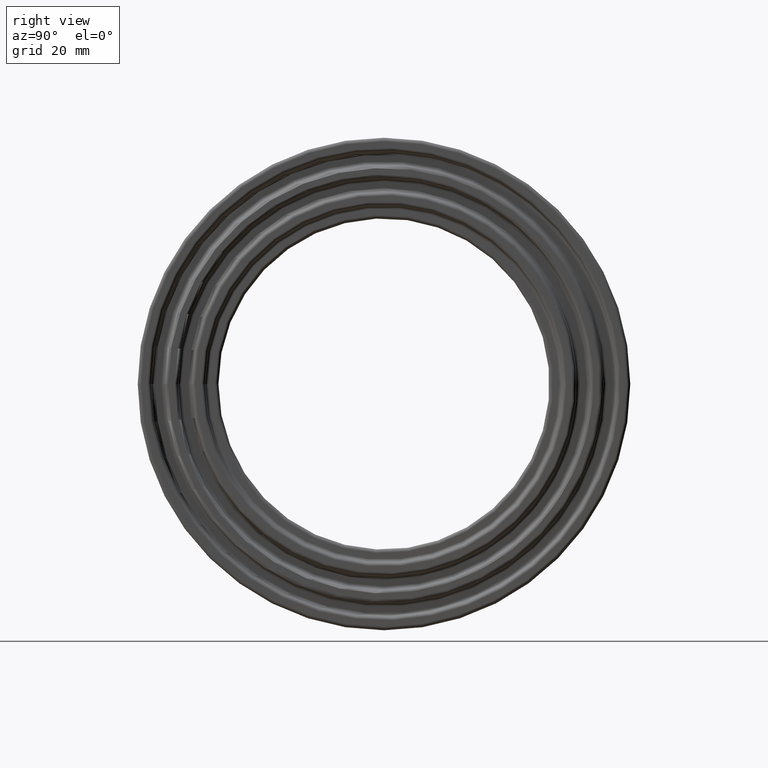
[diagram: clean part render]
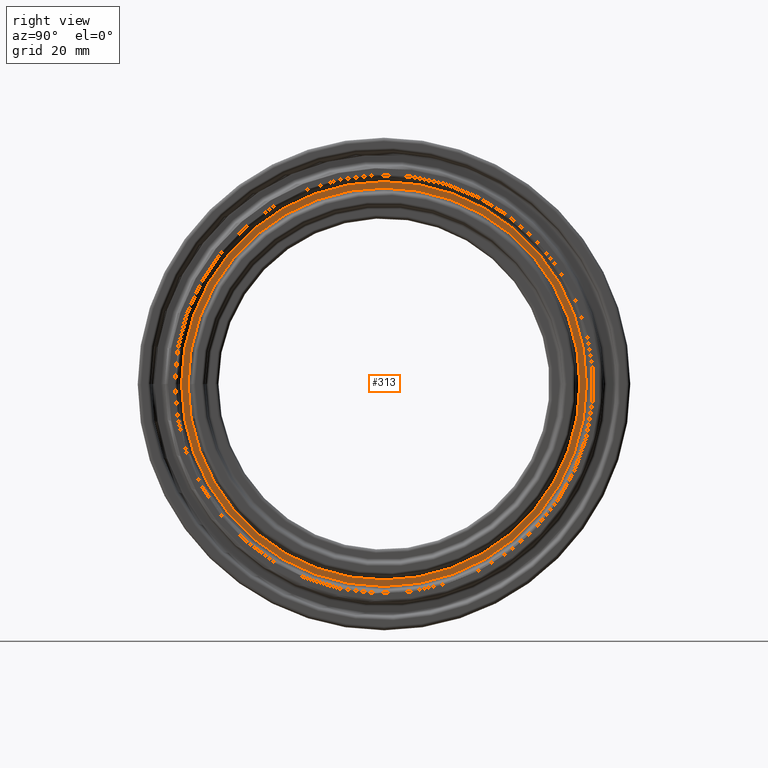
[diagram: same view with one face highlighted and labeled with its STEP entity id]
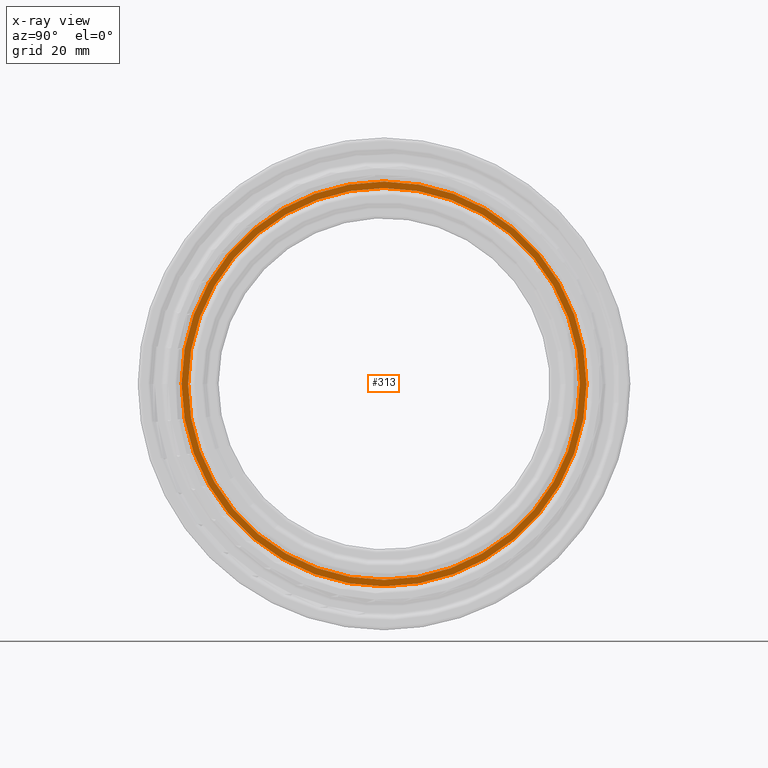
[diagram: x-ray of the same camera — body ghosted, the highlighted face saturated]
A machine part, right view. The second image highlights one B-rep face of the part: STEP entity #313.
The next image is the same camera in x-ray: the body ghosted, the highlighted face saturated — about 0% of this face is hidden behind the body in this view.
In plain terms, the highlighted planar face has unit normal (1, 0, 0).
Its self-contained STEP definition (entity closure, byte-faithful):
#25=PLANE('',#364);
#46=FACE_BOUND('',#121,.T.);
#74=FACE_OUTER_BOUND('',#120,.T.);
#120=EDGE_LOOP('',(#260));
#121=EDGE_LOOP('',(#261));
#160=CIRCLE('',#363,42.1666666666667);
#161=CIRCLE('',#365,43.5625);
#188=VERTEX_POINT('',#554);
#189=VERTEX_POINT('',#557);
#216=EDGE_CURVE('',#188,#188,#160,.T.);
#217=EDGE_CURVE('',#189,#189,#161,.T.);
#260=ORIENTED_EDGE('',*,*,#217,.F.);
#261=ORIENTED_EDGE('',*,*,#216,.F.);
#313=ADVANCED_FACE('',(#74,#46),#25,.T.);
#363=AXIS2_PLACEMENT_3D('',#555,#459,#460);
#364=AXIS2_PLACEMENT_3D('',#556,#461,#462);
#365=AXIS2_PLACEMENT_3D('',#558,#463,#464);
#459=DIRECTION('center_axis',(1.,0.,0.));
#460=DIRECTION('ref_axis',(0.,1.,6.12323399573676E-17));
#461=DIRECTION('center_axis',(1.,0.,0.));
#462=DIRECTION('ref_axis',(0.,0.,-1.));
#463=DIRECTION('center_axis',(-1.,0.,0.));
#464=DIRECTION('ref_axis',(0.,1.,6.12323399573677E-17));
#554=CARTESIAN_POINT('',(46.5,-42.1666666666667,-7.74589100460701E-15));
#555=CARTESIAN_POINT('Origin',(46.5,0.,0.));
#556=CARTESIAN_POINT('Origin',(46.5,-44.3125,0.));
#557=CARTESIAN_POINT('',(46.5,-43.5625,2.66743380939283E-15));
#558=CARTESIAN_POINT('Origin',(46.5,0.,0.));